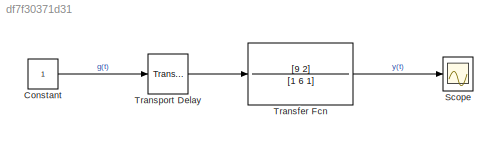
MODEL slx_df7f30371d31
KIND model
CONFIG AbsTol = auto
CONFIG EnableMultiTasking = off
CONFIG FixedStep = auto
CONFIG MaxStep = auto
CONFIG MinStep = auto
CONFIG RelTol = 1e-3
CONFIG SampleTimeConstraint = Unconstrained
CONFIG SolverName = VariableStepAuto
CONFIG StartTime = 0.0
CONFIG StopTime = 100
BLOCK [Constant] Constant
BLOCK [Scope] Scope
  Floating = off
  NumInputPorts = 1
  Ports = [1]
  ScopeSpecificationString = Simulink.scopes.TimeScopeBlockCfg('CurrentConfiguration', extmgr.ConfigurationSet(extmgr.Configuration('Core','General UI',true),extmgr.Configuration('Core','Source UI',true),extmgr.Configuration('Sources','WiredSimulink',true),extmgr.Configuration('Visuals','Time Domain',true,'SerializedDisplays',{struct('MinYLimReal','-0.24998','MaxYLimReal','2.24981','YLabelReal','','MinYLimMag','0.00000','MaxY...<+1324ch>
BLOCK [TransferFcn] Transfer Fcn
  Denominator = [1 6 1]
  Numerator = [9 2]
BLOCK [TransportDelay] Transport Delay
  DelayTime = 50
  Ports = [1, 1]
LINE Constant:1 -> Transport Delay:1
LINE Transfer Fcn:1 -> Scope:1
LINE Transport Delay:1 -> Transfer Fcn:1
